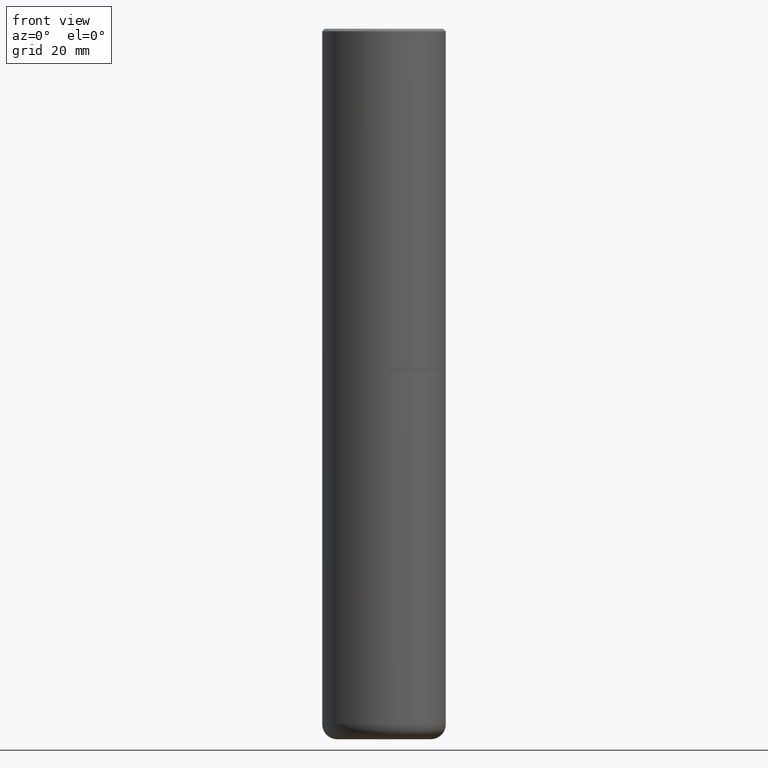
[diagram: clean part render]
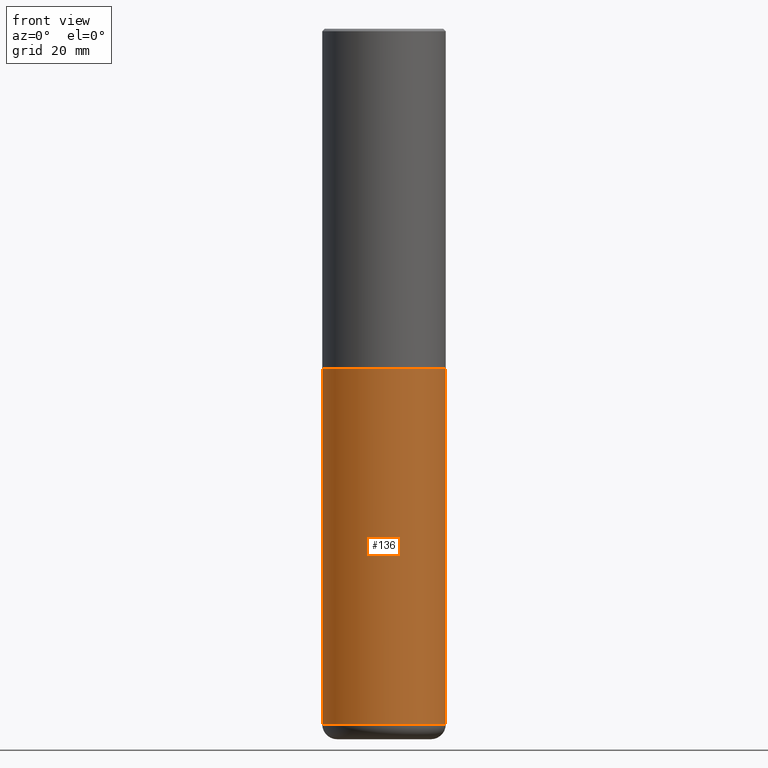
[diagram: same view with one face highlighted and labeled with its STEP entity id]
A machine part, front view. The second image highlights one B-rep face of the part: STEP entity #136.
In plain terms, the highlighted cylindrical surface (partial cylindrical patch) has radius 12.7 mm, axis along (-0, 0, 1).
Its self-contained STEP definition (entity closure, byte-faithful):
#31 = DIRECTION ( 'NONE',  ( -2.445468806185136597E-29, 3.491481338843145583E-15, 1.000000000000000000 ) ) ;
#67 = EDGE_CURVE ( 'NONE', #124, #113, #100, .T. ) ;
#90 = CARTESIAN_POINT ( 'NONE',  ( -0.5000000000000000000, -1.107659313095227642E-14, -2.749999999999999556 ) ) ;
#91 = ORIENTED_EDGE ( 'NONE', *, *, #209, .T. ) ;
#100 = CIRCLE ( 'NONE', #137, 0.5000000000000000000 ) ;
#103 = FACE_OUTER_BOUND ( 'NONE', #402, .T. ) ;
#113 = VERTEX_POINT ( 'NONE', #321 ) ;
#116 = CARTESIAN_POINT ( 'NONE',  ( 6.725039217009123399E-29, -9.601573681818648281E-15, -2.749999999999999556 ) ) ;
#122 = CARTESIAN_POINT ( 'NONE',  ( -0.4999999999999998335, -1.610432625888640549E-14, -5.629999999999999893 ) ) ;
#124 = VERTEX_POINT ( 'NONE', #90 ) ;
#136 = ADVANCED_FACE ( 'NONE', ( #103 ), #157, .T. ) ;
#137 = AXIS2_PLACEMENT_3D ( 'NONE', #116, #31, #236 ) ;
#157 = CYLINDRICAL_SURFACE ( 'NONE', #274, 0.5000000000000000000 ) ;
#166 = CARTESIAN_POINT ( 'NONE',  ( 0.5000000000000000000, -3.491481338843133355E-15, 2.438088387897967896E-29 ) ) ;
#182 = CARTESIAN_POINT ( 'NONE',  ( -0.5000000000000000000, 3.552713678800500929E-15, -2.459467545127452891E-29 ) ) ;
#193 = DIRECTION ( 'NONE',  ( -2.445468806185136597E-29, 3.491481338843145583E-15, 1.000000000000000000 ) ) ;
#204 = AXIS2_PLACEMENT_3D ( 'NONE', #255, #193, #366 ) ;
#207 = ORIENTED_EDGE ( 'NONE', *, *, #237, .T. ) ;
#209 = EDGE_CURVE ( 'NONE', #218, #113, #406, .T. ) ;
#218 = VERTEX_POINT ( 'NONE', #379 ) ;
#226 = VERTEX_POINT ( 'NONE', #122 ) ;
#236 = DIRECTION ( 'NONE',  ( 1.000000000000000000, -6.982962677686266711E-15, 0.000000000000000000 ) ) ;
#237 = EDGE_CURVE ( 'NONE', #226, #218, #364, .T. ) ;
#248 = ORIENTED_EDGE ( 'NONE', *, *, #67, .F. ) ;
#255 = CARTESIAN_POINT ( 'NONE',  ( 1.376798937882231913E-28, -1.965703993768690642E-14, -5.629999999999999893 ) ) ;
#257 = ORIENTED_EDGE ( 'NONE', *, *, #270, .F. ) ;
#270 = EDGE_CURVE ( 'NONE', #226, #124, #361, .T. ) ;
#274 = AXIS2_PLACEMENT_3D ( 'NONE', #342, #292, #313 ) ;
#291 = DIRECTION ( 'NONE',  ( -2.445468806185136877E-29, 3.491481338843145188E-15, 1.000000000000000000 ) ) ;
#292 = DIRECTION ( 'NONE',  ( -2.445468806185136597E-29, 3.491481338843145583E-15, 1.000000000000000000 ) ) ;
#313 = DIRECTION ( 'NONE',  ( 1.000000000000000000, -6.982962677686266711E-15, 4.876176775795935793E-29 ) ) ;
#321 = CARTESIAN_POINT ( 'NONE',  ( 0.5000000000000000000, -1.309305502066178164E-14, -2.749999999999999556 ) ) ;
#341 = VECTOR ( 'NONE', #291, 39.37007874015748143 ) ;
#342 = CARTESIAN_POINT ( 'NONE',  ( 0.000000000000000000, 0.000000000000000000, 0.000000000000000000 ) ) ;
#357 = DIRECTION ( 'NONE',  ( -2.445468806185136877E-29, 3.491481338843145188E-15, 1.000000000000000000 ) ) ;
#361 = LINE ( 'NONE', #182, #381 ) ;
#364 = CIRCLE ( 'NONE', #204, 0.4999999999999999445 ) ;
#366 = DIRECTION ( 'NONE',  ( 1.000000000000000000, -6.982962677686263555E-15, 0.000000000000000000 ) ) ;
#379 = CARTESIAN_POINT ( 'NONE',  ( 0.4999999999999998335, -2.314852127653003978E-14, -5.629999999999999893 ) ) ;
#381 = VECTOR ( 'NONE', #357, 39.37007874015748143 ) ;
#402 = EDGE_LOOP ( 'NONE', ( #257, #207, #91, #248 ) ) ;
#406 = LINE ( 'NONE', #166, #341 ) ;